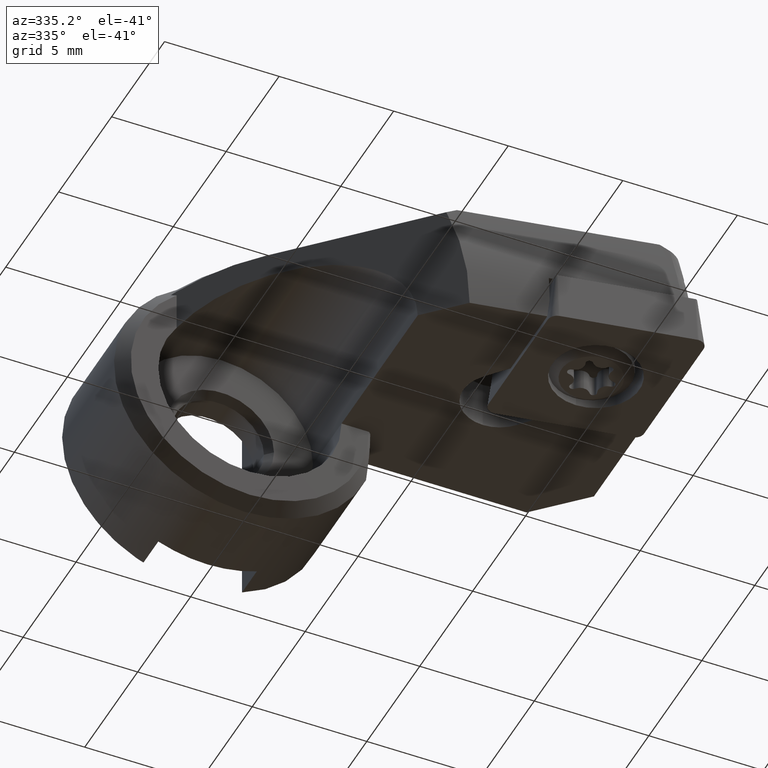
[diagram: clean part render]
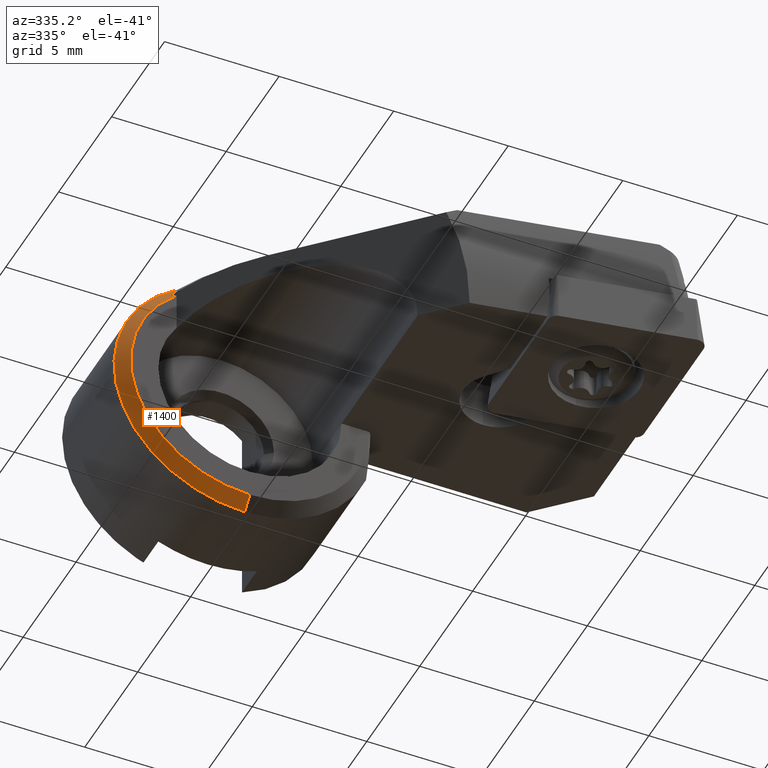
[diagram: same view with one face highlighted and labeled with its STEP entity id]
A machine part, auxiliary view. The second image highlights one B-rep face of the part: STEP entity #1400.
In plain terms, the highlighted conical surface has half-angle 45 deg.
Its self-contained STEP definition (entity closure, byte-faithful):
#646=VERTEX_POINT('NONE',#1789);
#648=EDGE_CURVE('NONE',#690,#1378,#1791,.T.);
#690=VERTEX_POINT('NONE',#1837);
#918=EDGE_CURVE('NONE',#1644,#646,#2089,.T.);
#1008=EDGE_CURVE('NONE',#1544,#690,#2192,.F.);
#1352=EDGE_CURVE('NONE',#1378,#1644,#2572,.T.);
#1378=VERTEX_POINT('NONE',#2601);
#1400=ADVANCED_FACE('NONE',(#2624),#2625,.T.);
#1544=VERTEX_POINT('NONE',#2782);
#1644=VERTEX_POINT('NONE',#2893);
#1654=EDGE_CURVE('NONE',#646,#1544,#2904,.T.);
#1789=CARTESIAN_POINT('',(-2.94728287791295,-5.1,4.87888549133521));
#1791=CIRCLE('',#3077,5.2);
#1837=CARTESIAN_POINT('',(-3.2,-5.6,4.09878030638384));
#2089=CIRCLE('',#3500,5.7);
#2192=B_SPLINE_CURVE_WITH_KNOTS('',2,(#4111,#4112,#4113),.UNSPECIFIED.,.F.,.F.,(3,3),(2.05480906789585,2.31394234071424),.UNSPECIFIED.);
#2572=LINE('',#4672,#4673);
#2601=CARTESIAN_POINT('',(-6.36816335556624E-016,-5.6,-5.2));
#2624=FACE_OUTER_BOUND('',#4747,.T.);
#2625=CONICAL_SURFACE('',#4748,5.7,0.785398163397449);
#2782=CARTESIAN_POINT('',(-3.37535154858156,-5.42464845141844,4.18346820166322));
#2893=CARTESIAN_POINT('',(-6.98048675513991E-016,-5.1,-5.7));
#2904=B_SPLINE_CURVE_WITH_KNOTS('',3,(#5174,#5175,#5176,#5177,#5178,#5179),.UNSPECIFIED.,.F.,.F.,(4,2,4),(-0.911170419737194,-0.442849238176866,-0.0),.UNSPECIFIED.);
#3077=AXIS2_PLACEMENT_3D('',#5324,#5325,#5326);
#3500=AXIS2_PLACEMENT_3D('',#5675,#5676,#5677);
#4111=CARTESIAN_POINT('',(-3.20000000000717,-5.59999999999283,4.09878030638733));
#4112=CARTESIAN_POINT('',(-3.28677926934717,-5.51322073065283,4.14112425402696));
#4113=CARTESIAN_POINT('',(-3.37535154858888,-5.42464845141112,4.18346820166659));
#4672=CARTESIAN_POINT('',(-6.98048675513991E-016,-5.1,-5.7));
#4673=VECTOR('',#6292,1000.0);
#4747=EDGE_LOOP('',(#6356,#6357,#6358,#6359,#6360));
#4748=AXIS2_PLACEMENT_3D('',#6361,#6362,#6363);
#5174=CARTESIAN_POINT('',(-2.94728287791295,-5.1,4.87888549133521));
#5175=CARTESIAN_POINT('',(-3.01637077291625,-5.16208635343382,4.76461476586374));
#5176=CARTESIAN_POINT('',(-3.08677874963376,-5.2206426730355,4.64938176850947));
#5177=CARTESIAN_POINT('',(-3.22624401516722,-5.32684659451126,4.42276150540643));
#5178=CARTESIAN_POINT('',(-3.30053776767833,-5.37913878088497,4.30230579411971));
#5179=CARTESIAN_POINT('',(-3.37535154858167,-5.42464845141832,4.18346820166314));
#5324=CARTESIAN_POINT('',(0.0,-5.6,0.0));
#5325=DIRECTION('',(1.44560289664734E-016,-1.0,-1.77035296021731E-032));
#5326=DIRECTION('',(-1.22464679914735E-016,0.0,-1.0));
#5675=CARTESIAN_POINT('',(0.0,-5.1,0.0));
#5676=DIRECTION('',(0.0,1.0,0.0));
#5677=DIRECTION('',(-1.22464679914735E-016,0.0,-1.0));
#6292=DIRECTION('',(-8.65956056235494E-017,0.707106781186547,-0.707106781186548));
#6356=ORIENTED_EDGE('',*,*,#1352,.F.);
#6357=ORIENTED_EDGE('',*,*,#648,.F.);
#6358=ORIENTED_EDGE('',*,*,#1008,.F.);
#6359=ORIENTED_EDGE('',*,*,#1654,.F.);
#6360=ORIENTED_EDGE('',*,*,#918,.F.);
#6361=CARTESIAN_POINT('',(0.0,-5.1,0.0));
#6362=DIRECTION('',(-0.0,1.0,0.0));
#6363=DIRECTION('',(-1.22464679914735E-016,0.0,-1.0));